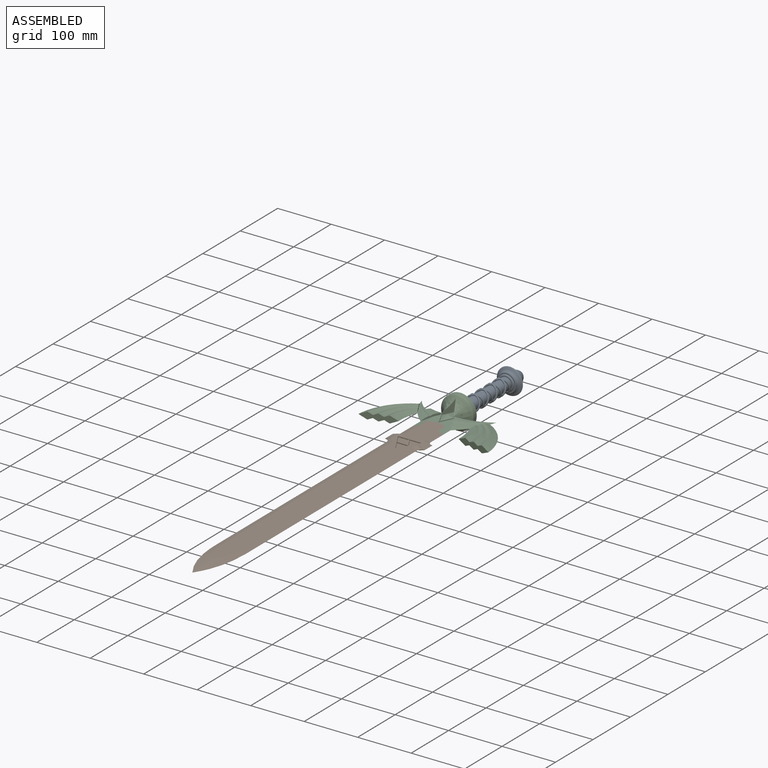
[diagram: assembled view]
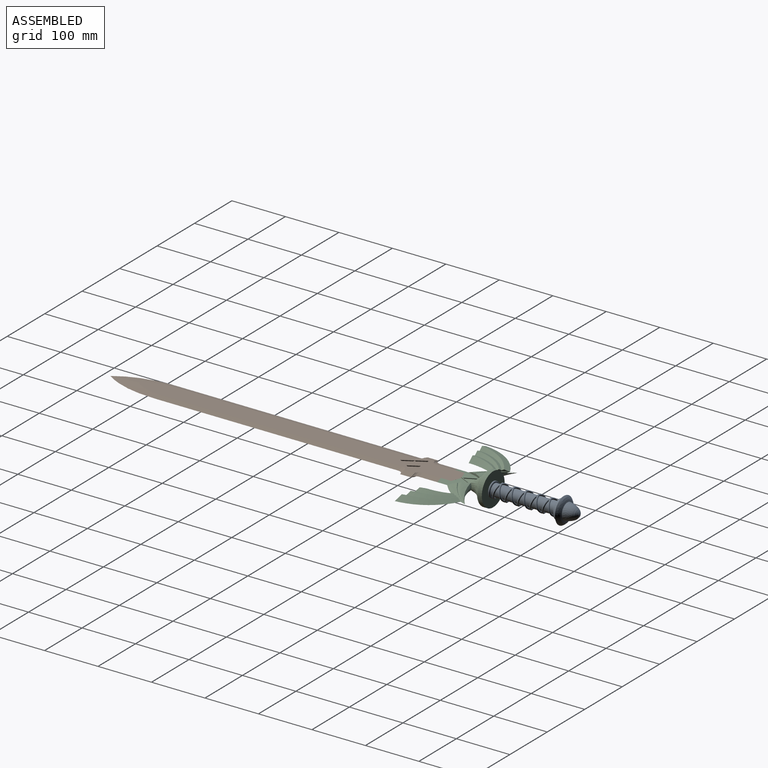
[diagram: assembled view, second angle]
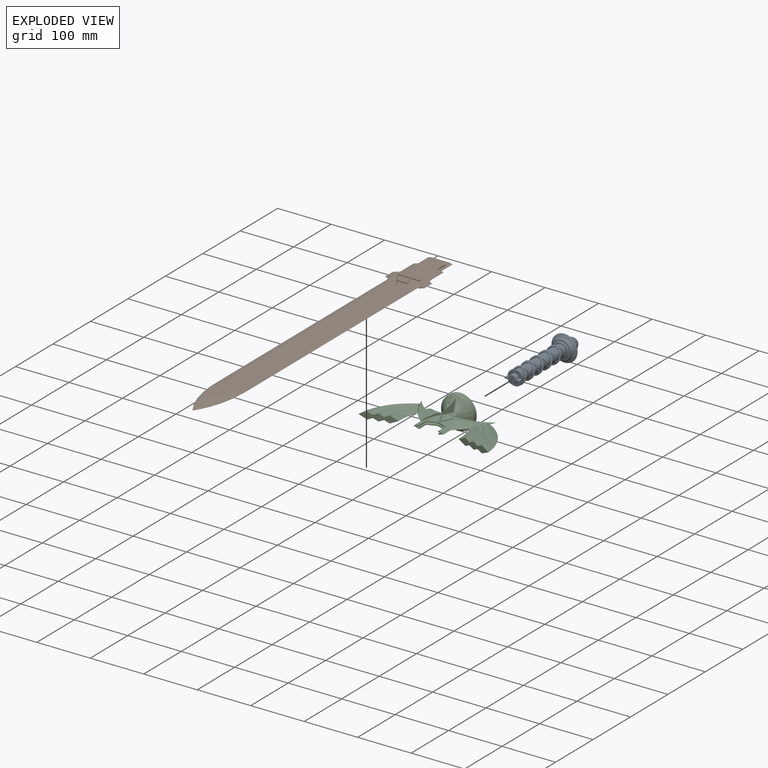
[diagram: exploded view]
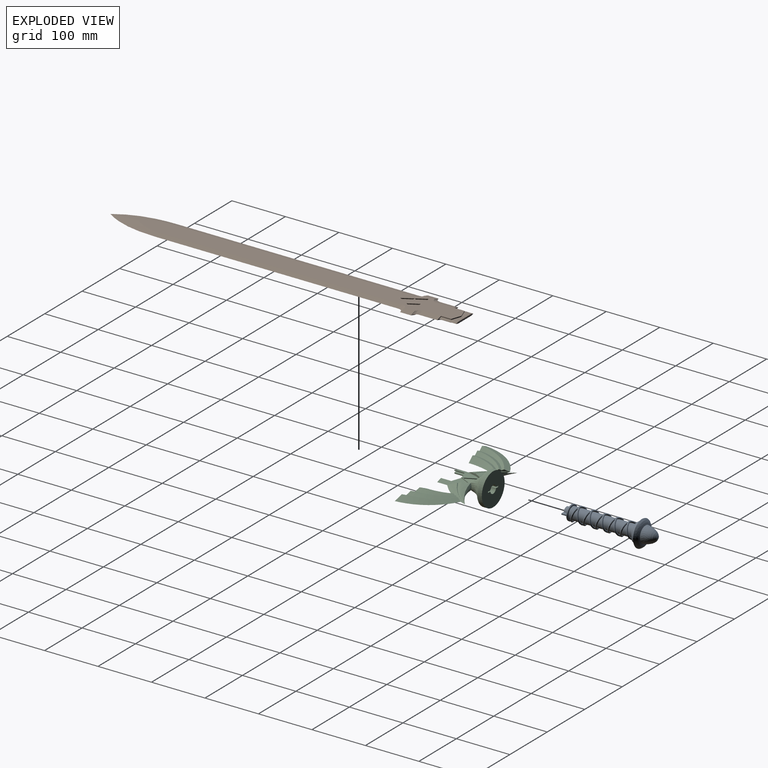
[diagram: exploded view, second angle]
ASSEMBLY  parts=3 mates=2
PART A: 54 faces, bbox 50.4x170.9x49.1 mm
  f0: cylinder r=11.11mm len=22.93mm, axis (0,-1,0), area 794.4mm2, adj f10,f11,f52,f53
  f1: cylinder r=11.11mm len=22.93mm, axis (0,-1,0), area 794.4mm2, adj f11,f12,f51,f52
  f2: cylinder r=11.11mm len=22.93mm, axis (0,-1,0), area 794.4mm2, adj f12,f13,f50,f51
  f3: cylinder r=11.11mm len=22.93mm, axis (0,-1,0), area 794.4mm2, adj f13,f14,f49,f50
  f4: cylinder r=11.11mm len=22.93mm, axis (0,-1,0), area 794.4mm2, adj f14,f15,f48,f49
  f5: cylinder r=11.11mm len=22.93mm, axis (0,-1,0), area 794.4mm2, adj f15,f16,f47,f48
  f6: cylinder r=11.11mm len=22.93mm, axis (0,-1,0), area 794.4mm2, adj f16,f17,f46,f47
  f7: cylinder r=11.11mm len=22.93mm, axis (0,-1,0), area 794.4mm2, adj f17,f18,f45,f46
  f8: cylinder r=11.11mm len=22.93mm, axis (0,-1,0), area 794.4mm2, adj f18,f43,f44,f45
  f9: cylinder r=11.11mm len=22.23mm, axis (0,-1,0), area 503.6mm2, adj f20,f43,f44
  f10: bspline ~28.58x19.07mm, area 381.5mm2, adj f0,f19,f33,f35,f52,f53
  f11: bspline ~28.58x20.23mm, area 364.1mm2, adj f0,f1,f51,f52,f53
  f12: bspline ~28.58x20.23mm, area 364.6mm2, adj f1,f2,f50,f51,f52
  f13: bspline ~28.58x20.23mm, area 364.1mm2, adj f2,f3,f49,f50,f51
  f14: bspline ~28.58x20.23mm, area 364.6mm2, adj f3,f4,f48,f49,f50
  f15: bspline ~28.58x20.23mm, area 364.1mm2, adj f4,f5,f47,f48,f49
  f16: bspline ~28.58x20.23mm, area 364.6mm2, adj f5,f6,f46,f47,f48
  f17: bspline ~28.58x20.23mm, area 364.1mm2, adj f6,f7,f45,f46,f47
  f18: bspline ~28.58x20.23mm, area 364.6mm2, adj f7,f8,f44,f45,f46
  f19: cylinder r=11.11mm len=22.23mm, axis (0,-1,0), area 485.9mm2, adj f10,f33,f53
  f20: plane 25.51x25.5mm, normal (0,-1,0), area 118.6mm2, adj f9,f21,f43,f44
  f21: torus R=12.7mm, axis (0,1,0), area 169.3mm2, adj f20,f38,f43,f44
  f22: plane 8.89x6.19mm, normal (0,0,-1), area 55.1mm2, adj f23,f29,f31,f34
  f23: cylinder r=7.62mm len=15.09mm, axis (0,-1,0), area 193.7mm2, adj f22,f24,f31,f34
  f24: plane 8.89x6.19mm, normal (0,0,-1), area 55.1mm2, adj f23,f25,f30,f31,f34
  f25: plane 8.89x2.14mm, normal (-1,0,0), area 19mm2, adj f24,f26,f30,f31
  f26: plane 8.89x6.19mm, normal (0,0,1), area 55.1mm2, adj f25,f27,f30,f31,f34
  f27: cylinder r=7.62mm len=15.09mm, axis (0,-1,0), area 193.7mm2, adj f26,f28,f31,f34
  f28: plane 8.89x6.19mm, normal (0,0,1), area 55.1mm2, adj f27,f29,f31,f34
  f29: plane 8.89x2.14mm, normal (1,0,0), area 19mm2, adj f22,f28,f31,f34
  f30: plane 2.14x0.08mm, normal (0,1,0), area 0.1mm2, adj f24,f25,f26,f32
  f31: plane 27.48x15.24mm, normal (0,-1,0), area 208.7mm2, adj f22,f23,f24,f25,f26,f27,f28,f29
  f32: cylinder r=13.97mm len=27.94mm, axis (0,-1,0), area 111.5mm2, adj f30,f34,f35
  f33: plane 25.78x25.73mm, normal (0,1,0), area 117.4mm2, adj f10,f19,f35,f53
  f34: plane 27.94x27.92mm, normal (0,-1,0), area 404.5mm2, adj f22,f23,f24,f26,f27,f28,f29,f32
  f35: torus R=12.7mm, axis (0,1,0), area 168.5mm2, adj f10,f32,f33,f53
  f36: cylinder r=17.78mm len=35.56mm, axis (0,-1,0), area 141.9mm2, adj f39,f40
  f37: plane 33.02x33.02mm, normal (0,-1,0), area 126.7mm2, adj f38,f39
  f38: torus R=15.24mm, axis (0,1,0), area 180.9mm2, adj f21,f37
  f39: torus R=16.51mm, axis (0,1,0), area 217.1mm2, adj f36,f37
  f40: bspline ~50.04x48.77mm, area 1233.5mm2, adj f36,f41
  f41: bspline ~50.04x48.77mm, area 1453.6mm2, adj f40,f42
  f42: revolved ~30.48x30.48mm, area 1841mm2, adj f41
  f43: bspline ~28.58x19.07mm, area 381.9mm2, adj f8,f9,f20,f21,f44,f45
  f44: bspline ~28.58x19.07mm, area 381.9mm2, adj f8,f9,f18,f20,f21,f43
  f45: bspline ~28.58x20.23mm, area 364.1mm2, adj f7,f8,f17,f18,f43
  f46: bspline ~28.58x20.23mm, area 364.6mm2, adj f6,f7,f16,f17,f18
  f47: bspline ~28.58x20.23mm, area 364.1mm2, adj f5,f6,f15,f16,f17
  f48: bspline ~28.58x20.23mm, area 364.6mm2, adj f4,f5,f14,f15,f16
  f49: bspline ~28.58x20.23mm, area 364.1mm2, adj f3,f4,f13,f14,f15
  f50: bspline ~28.58x20.23mm, area 364.6mm2, adj f2,f3,f12,f13,f14
  f51: bspline ~28.58x20.23mm, area 364.1mm2, adj f1,f2,f11,f12,f13
  f52: bspline ~28.58x20.23mm, area 364.6mm2, adj f0,f1,f10,f11,f12
  f53: bspline ~28.58x19.07mm, area 381.6mm2, adj f0,f10,f11,f19,f33,f35
PART B: 51 faces, bbox 74.3x6.5x662.8 mm
  f0: plane 45.62x3.03mm, normal (0,0,-1), area 123.3mm2, adj f39,f41,f42,f44,f47,f50
  f1: plane 31.75x1.66mm, normal (-1,0,0), area 31.7mm2, adj f4,f5,f44,f49,f50
  f2: plane 601.94x53.71mm, normal (0,1,0), area 20561.7mm2, adj f3,f23,f24,f25,f26,f27,f28,f29
  f3: plane 31.75x1.66mm, normal (1,0,0), area 31.7mm2, adj f2,f11,f41,f45,f47
  f4: plane 10.29x6.35mm, normal (0,0,-1), area 25.2mm2, adj f1,f12,f28,f39,f40,f44
  f5: plane 601.94x53.71mm, normal (0,-1,0), area 20561.7mm2, adj f1,f6,f7,f8,f9,f10,f12,f13
  f6: bspline ~103.71x28.17mm, area 1438.2mm2, adj f5,f7,f14,f23
  f7: bspline ~103.71x28.17mm, area 1438.2mm2, adj f5,f6,f8,f24
  f8: bspline ~464.24x19.15mm, area 4994mm2, adj f5,f7,f9,f25
  f9: plane 20.32x10.29mm, normal (0.29,-0.96,0), area 218.8mm2, adj f5,f8,f10,f26
  f10: bspline ~42.92x19.15mm, area 471.1mm2, adj f5,f9,f11,f27
  f11: plane 10.29x6.35mm, normal (0,0,-1), area 25.2mm2, adj f3,f10,f27,f41,f42,f43
  f12: bspline ~42.92x19.15mm, area 471.1mm2, adj f4,f5,f13,f28
  f13: plane 20.32x10.29mm, normal (-0.29,-0.96,0), area 218.8mm2, adj f5,f12,f14,f29
  f14: bspline ~464.24x19.15mm, area 4994mm2, adj f5,f6,f13,f30
  f15: plane 37.79x21.82mm, normal (-0.87,0,-0.5), area 69.3mm2, adj f5,f16,f20,f21
  f16: plane 43.64x1.59mm, normal (0,0,1), area 69.3mm2, adj f5,f15,f20,f21
  f17: plane 18.89x10.91mm, normal (-0.87,0,-0.5), area 34.6mm2, adj f18,f19,f21,f22
  f18: plane 18.89x10.91mm, normal (0.87,0,-0.5), area 34.6mm2, adj f17,f19,f21,f22
  f19: plane 21.81x1.59mm, normal (0,0,1), area 34.6mm2, adj f17,f18,f21,f22
  f20: plane 37.79x21.82mm, normal (0.87,0,-0.5), area 69.3mm2, adj f5,f15,f16,f21
  f21: plane 43.64x37.79mm, normal (0,-1,0), area 618.6mm2, adj f15,f16,f17,f18,f19,f20
  f22: plane 21.81x18.89mm, normal (0,-1,0), area 206mm2, adj f17,f18,f19
  f23: bspline ~103.71x28.17mm, area 1438.2mm2, adj f2,f6,f24,f30
  f24: bspline ~103.71x28.17mm, area 1438.2mm2, adj f2,f7,f23,f25
  f25: bspline ~464.24x19.15mm, area 4994mm2, adj f2,f8,f24,f26
  f26: plane 20.32x10.29mm, normal (0.29,0.96,0), area 218.8mm2, adj f2,f9,f25,f27
  f27: bspline ~42.92x19.15mm, area 471.1mm2, adj f2,f10,f11,f26
  f28: bspline ~42.92x19.15mm, area 471.1mm2, adj f2,f4,f12,f29
  f29: plane 20.32x10.29mm, normal (-0.29,0.96,0), area 218.8mm2, adj f2,f13,f28,f30
  f30: bspline ~464.24x19.15mm, area 4994mm2, adj f2,f14,f23,f29
  f31: plane 37.79x21.82mm, normal (-0.87,0,-0.5), area 69.3mm2, adj f2,f32,f36,f37
  f32: plane 37.79x21.82mm, normal (0.87,0,-0.5), area 69.3mm2, adj f2,f31,f36,f37
  f33: plane 18.89x10.91mm, normal (-0.87,0,-0.5), area 34.6mm2, adj f34,f35,f37,f38
  f34: plane 21.81x1.59mm, normal (0,0,1), area 34.6mm2, adj f33,f35,f37,f38
  f35: plane 18.89x10.91mm, normal (0.87,0,-0.5), area 34.6mm2, adj f33,f34,f37,f38
  f36: plane 43.64x1.59mm, normal (0,0,1), area 69.3mm2, adj f2,f31,f32,f37
  f37: plane 43.64x37.79mm, normal (0,1,0), area 618.6mm2, adj f31,f32,f33,f34,f35,f36
  f38: plane 21.81x18.89mm, normal (0,1,0), area 206mm2, adj f33,f34,f35
  f39: plane 31.75x4.9mm, normal (-0.29,0.96,0), area 163mm2, adj f0,f4,f40,f44
  f40: plane 31.75x1.66mm, normal (-1,0,0), area 31.7mm2, adj f2,f4,f39,f46,f47
  f41: plane 31.75x4.9mm, normal (0.29,0.96,0), area 163mm2, adj f0,f3,f11,f42
  f42: plane 31.75x4.9mm, normal (0.29,-0.96,0), area 163mm2, adj f0,f11,f41,f43
  f43: plane 31.75x1.66mm, normal (1,0,0), area 31.7mm2, adj f5,f11,f42,f48,f50
  f44: plane 31.75x4.9mm, normal (-0.29,-0.96,0), area 163mm2, adj f0,f1,f4,f39
  f45: plane 17.91x6.35mm, normal (0.33,0,-0.94), area 31.6mm2, adj f2,f3,f46,f47
  f46: plane 17.91x6.35mm, normal (-0.33,0,-0.94), area 31.6mm2, adj f2,f40,f45,f47
  f47: plane 35.81x12.7mm, normal (0,1,0), area 341.1mm2, adj f0,f3,f40,f45,f46
  f48: plane 17.91x6.35mm, normal (0.33,0,-0.94), area 31.6mm2, adj f5,f43,f49,f50
  f49: plane 17.91x6.35mm, normal (-0.33,0,-0.94), area 31.6mm2, adj f1,f5,f48,f50
  f50: plane 35.81x12.7mm, normal (0,-1,0), area 341.1mm2, adj f0,f1,f43,f48,f49
PART C: 126 faces, bbox 243.6x61.2x99.3 mm
  f0: plane 32.87x18.09mm, normal (0,-1,0), area 323.8mm2, adj f4,f12,f29,f75,f102,f108
  f1: plane 0.73x0.4mm, normal (0,0,1), area 0.2mm2, adj f4,f100,f123
  f2: bspline ~62.29x48.09mm, area 570.1mm2, adj f3,f75,f76,f77,f86
  f3: bspline ~62.28x48.09mm, area 569.8mm2, adj f2,f75,f76,f78,f86
  f4: bspline ~58.82x58.8mm, area 3114.7mm2, adj f0,f1,f7,f8,f9,f10,f32,f33
  f5: bspline ~62.28x48.09mm, area 569.8mm2, adj f6,f55,f57,f58,f61
  f6: bspline ~62.29x48.09mm, area 570.1mm2, adj f5,f56,f57,f58,f61
  f7: plane 0.73x0.4mm, normal (0,0,1), area 0.2mm2, adj f4,f42,f125
  f8: plane 32.87x18.09mm, normal (0,1,0), area 323.8mm2, adj f4,f24,f31,f37,f48,f58
  f9: plane 32.88x18.1mm, normal (0,-1,0), area 323.8mm2, adj f4,f23,f28,f58,f105,f107
  f10: plane 32.88x18.1mm, normal (0,1,0), area 323.8mm2, adj f4,f13,f30,f36,f47,f75
  f11: plane 44.45x3.03mm, normal (0,0,1), area 123.1mm2, adj f14,f15,f16,f17,f26,f27,f59,f74
  f12: plane 40.39x10.29mm, normal (-0.29,-0.96,0), area 324mm2, adj f0,f13,f18,f25,f75
  f13: plane 40.39x10.29mm, normal (-0.29,0.96,0), area 324mm2, adj f10,f12,f20,f25,f75
  f14: plane 31.75x4.9mm, normal (0.29,0.96,0), area 162.6mm2, adj f11,f15,f17,f18,f25,f74
  f15: plane 31.75x4.9mm, normal (0.29,-0.96,0), area 162.6mm2, adj f11,f14,f16,f20,f25,f74
  f16: plane 35.81x12.7mm, normal (0,-1,0), area 341.1mm2, adj f11,f15,f26,f30,f31
  f17: plane 35.81x12.7mm, normal (0,1,0), area 341.1mm2, adj f11,f14,f27,f28,f29
  f18: plane 19.05x1.66mm, normal (1,0,0), area 31.6mm2, adj f12,f14,f25,f29
  f19: plane 19.05x1.66mm, normal (-1,0,0), area 31.6mm2, adj f22,f23,f27,f28
  f20: plane 19.05x1.66mm, normal (1,0,0), area 31.6mm2, adj f13,f15,f25,f30
  f21: plane 19.05x1.66mm, normal (-1,0,0), area 31.6mm2, adj f22,f24,f26,f31
  f22: plane 10.29x6.35mm, normal (0,0,1), area 25.2mm2, adj f19,f21,f23,f24,f26,f27
  f23: plane 40.39x10.29mm, normal (0.29,-0.96,0), area 324mm2, adj f9,f19,f22,f24,f58
  f24: plane 40.39x10.29mm, normal (0.29,0.96,0), area 324mm2, adj f8,f21,f22,f23,f58
  f25: plane 10.29x6.35mm, normal (0,0,1), area 25.2mm2, adj f12,f13,f14,f15,f18,f20
  f26: plane 31.75x4.9mm, normal (-0.29,-0.96,0), area 162.6mm2, adj f11,f16,f21,f22,f27,f59
  f27: plane 31.75x4.9mm, normal (-0.29,0.96,0), area 162.6mm2, adj f11,f17,f19,f22,f26,f59
  f28: plane 17.91x6.35mm, normal (-0.33,0,0.94), area 31.6mm2, adj f9,f17,f19,f29
  f29: plane 17.91x6.35mm, normal (0.33,0,0.94), area 31.6mm2, adj f0,f17,f18,f28
  f30: plane 17.91x6.35mm, normal (0.33,0,0.94), area 31.6mm2, adj f10,f16,f20,f31
  f31: plane 17.91x6.35mm, normal (-0.33,0,0.94), area 31.6mm2, adj f8,f16,f21,f30
  f32: plane 0.73x0.4mm, normal (0,0,1), area 0.2mm2, adj f4,f101,f122
  f33: plane 0.73x0.4mm, normal (0,0,1), area 0.2mm2, adj f4,f41,f124
  f34: cylinder r=30.48mm len=60.96mm, axis (0,0,1), area 1451.9mm2, adj f35,f99
  f35: bspline ~60.98x60.97mm, area 454.9mm2, adj f4,f34
  f36: plane 23.76x11.88mm, normal (-0.89,0,0.45), area 33.3mm2, adj f10,f37,f38,f47
  f37: plane 23.91x12.03mm, normal (0.89,0,0.45), area 33.3mm2, adj f8,f36,f38,f48
  f38: plane 24.18x23.84mm, normal (0,1,0), area 82.8mm2, adj f36,f37,f39,f40,f47,f48,f124,f125
  f39: plane 21.94x11.1mm, normal (0.89,0,-0.45), area 31.2mm2, adj f38,f40,f42,f44,f125
  f40: plane 21.94x11.1mm, normal (-0.89,0,-0.45), area 31.2mm2, adj f38,f39,f41,f46,f124
  f41: plane 22.34x21.68mm, normal (-0.89,0,0.45), area 289.4mm2, adj f4,f33,f40,f42,f45
  f42: plane 22.34x21.68mm, normal (0.89,0,0.45), area 289.4mm2, adj f4,f7,f39,f41,f43
  f43: plane 21.68x10.84mm, normal (-0.34,0.92,-0.17), area 127.3mm2, adj f42,f44,f45
  f44: plane 21.68x10.84mm, normal (-0.34,0.92,0.17), area 127.3mm2, adj f39,f43,f46
  f45: plane 21.68x10.84mm, normal (0.34,0.92,-0.17), area 127.3mm2, adj f41,f43,f46
  f46: plane 21.68x10.84mm, normal (0.34,0.92,0.17), area 127.3mm2, adj f40,f44,f45
  f47: bspline ~3.77x2.48mm, area 3.4mm2, adj f4,f10,f36,f38,f125
  f48: bspline ~3.18x2.35mm, area 3.4mm2, adj f4,f8,f37,f38,f124
  f49: bspline ~51.19x47.12mm, area 193.4mm2, adj f50,f56,f57,f58
  f50: bspline ~57.35x42.48mm, area 457.5mm2, adj f49,f51,f58
  f51: bspline ~58.21x29.89mm, area 208.8mm2, adj f4,f50,f52,f58
  f52: bspline ~58.22x29.89mm, area 208.8mm2, adj f4,f51,f53,f58
  f53: bspline ~57.99x42.48mm, area 457.8mm2, adj f52,f54,f57,f58
  f54: bspline ~51.08x47.12mm, area 193.5mm2, adj f53,f55,f57,f58
  f55: bspline ~48.76x48.47mm, area 66.3mm2, adj f5,f54,f57,f58
  f56: bspline ~48.75x48.47mm, area 66.3mm2, adj f6,f49,f57,f58
  f57: plane 0.11x0.11mm, normal (0,0,-1), area 0mm2, adj f5,f6,f49,f53,f54,f55,f56
  f58: plane 33.29x16.66mm, normal (-0.89,0,0.45), area 215.6mm2, adj f4,f5,f6,f8,f9,f23,f24,f49
  f59: plane 1.17x0.59mm, normal (-0.89,0,0.45), area 0.2mm2, adj f11,f26,f27
  f60: plane 65.58x14.01mm, normal (-0.21,0,0.98), area 553.9mm2, adj f62,f63,f64,f65,f66,f67,f68,f69
  f61: plane 29.56x16.69mm, normal (-0.87,0,-0.49), area 142.7mm2, adj f5,f6,f62,f63,f64,f65,f66,f67
  f62: bspline ~51.75x21.57mm, area 642.2mm2, adj f60,f61,f63,f73
  f63: bspline ~57.13x25.9mm, area 435.8mm2, adj f60,f61,f62,f64
  f64: bspline ~62.53x33.08mm, area 496.3mm2, adj f60,f61,f63,f65
  f65: bspline ~67.81x40.3mm, area 551.2mm2, adj f60,f61,f64,f66
  f66: bspline ~73.06x47.4mm, area 598.3mm2, adj f60,f61,f65,f67
  f67: bspline ~84.19x60.17mm, area 1289.1mm2, adj f60,f61,f66,f68
  f68: bspline ~84.19x60.17mm, area 1289.1mm2, adj f60,f61,f67,f69
  f69: bspline ~73.07x47.4mm, area 605.6mm2, adj f60,f61,f68,f70
  f70: bspline ~67.78x40.12mm, area 543.8mm2, adj f60,f61,f69,f71
  f71: bspline ~62.53x33.09mm, area 492.3mm2, adj f60,f61,f70,f72
  f72: bspline ~57.15x26.03mm, area 439.8mm2, adj f60,f61,f71,f73
  f73: bspline ~51.75x21.57mm, area 642.2mm2, adj f60,f61,f62,f72
  f74: plane 1.17x0.59mm, normal (0.89,0,0.45), area 0.2mm2, adj f11,f14,f15
  f75: plane 33.29x16.66mm, normal (0.89,0,0.45), area 215.6mm2, adj f0,f2,f3,f4,f10,f12,f13,f77
  f76: plane 0.09x0.09mm, normal (0,0,-1), area 0mm2, adj f2,f3,f77,f78,f79,f80,f84
  f77: bspline ~48.75x48.47mm, area 66.3mm2, adj f2,f75,f76,f84
  f78: bspline ~48.76x48.47mm, area 66.3mm2, adj f3,f75,f76,f79
  f79: bspline ~51.08x47.12mm, area 193.5mm2, adj f75,f76,f78,f80
  f80: bspline ~57.99x42.48mm, area 457.8mm2, adj f75,f76,f79,f81
  f81: bspline ~58.22x29.89mm, area 208.8mm2, adj f4,f75,f80,f82
  f82: bspline ~58.21x29.89mm, area 208.8mm2, adj f4,f75,f81,f83
  f83: bspline ~57.35x42.48mm, area 457.5mm2, adj f75,f82,f84
  f84: bspline ~51.19x47.12mm, area 193.4mm2, adj f75,f76,f77,f83
  f85: plane 65.58x14.01mm, normal (0.21,0,0.98), area 553.9mm2, adj f87,f88,f89,f90,f91,f92,f93,f94
  f86: plane 29.56x16.69mm, normal (0.87,0,-0.49), area 142.7mm2, adj f2,f3,f87,f88,f89,f90,f91,f92
  f87: bspline ~51.75x21.57mm, area 642.2mm2, adj f85,f86,f88,f98
  f88: bspline ~57.13x25.9mm, area 435.8mm2, adj f85,f86,f87,f89
  f89: bspline ~62.53x33.08mm, area 496.3mm2, adj f85,f86,f88,f90
  f90: bspline ~67.81x40.3mm, area 551.2mm2, adj f85,f86,f89,f91
  f91: bspline ~73.06x47.4mm, area 598.3mm2, adj f85,f86,f90,f92
  f92: bspline ~84.19x60.17mm, area 1289.1mm2, adj f85,f86,f91,f93
  f93: bspline ~84.19x60.17mm, area 1289.1mm2, adj f85,f86,f92,f94
  f94: bspline ~73.07x47.4mm, area 605.6mm2, adj f85,f86,f93,f95
  f95: bspline ~67.78x40.12mm, area 543.8mm2, adj f85,f86,f94,f96
  f96: bspline ~62.53x33.09mm, area 492.3mm2, adj f85,f86,f95,f97
  f97: bspline ~57.15x26.03mm, area 439.8mm2, adj f85,f86,f96,f98
  f98: bspline ~51.75x21.57mm, area 642.2mm2, adj f85,f86,f87,f97
  f99: plane 60.96x60.96mm, normal (0,0,-1), area 2709.9mm2, adj f34,f113,f114,f115,f116,f117,f118,f119
  f100: plane 22.34x21.68mm, normal (0.89,0,0.45), area 289.5mm2, adj f1,f4,f101,f103,f110
  f101: plane 22.34x21.68mm, normal (-0.89,0,0.45), area 289.4mm2, adj f4,f32,f100,f104,f112
  f102: plane 23.91x12.03mm, normal (-0.89,0,0.45), area 33.3mm2, adj f0,f105,f106,f108
  f103: plane 21.94x11.1mm, normal (0.89,0,-0.45), area 31.2mm2, adj f100,f104,f106,f109,f123
  f104: plane 21.94x11.1mm, normal (-0.89,0,-0.45), area 31.2mm2, adj f101,f103,f106,f111,f122
  f105: plane 23.76x11.88mm, normal (0.89,0,0.45), area 33.3mm2, adj f9,f102,f106,f107
  f106: plane 24.18x23.84mm, normal (0,-1,0), area 82.8mm2, adj f102,f103,f104,f105,f107,f108,f122,f123
  f107: bspline ~3.77x2.48mm, area 3.4mm2, adj f4,f9,f105,f106,f122
  f108: bspline ~3.72x2.47mm, area 3.4mm2, adj f0,f4,f102,f106,f123
  f109: plane 21.68x10.84mm, normal (-0.34,-0.92,0.17), area 127.3mm2, adj f103,f110,f111
  f110: plane 21.68x10.84mm, normal (-0.34,-0.92,-0.17), area 127.3mm2, adj f100,f109,f112
  f111: plane 21.68x10.84mm, normal (0.34,-0.92,0.17), area 127.3mm2, adj f104,f109,f112
  f112: plane 21.68x10.84mm, normal (0.34,-0.92,-0.17), area 127.3mm2, adj f101,f110,f111
  f113: plane 8.89x6.19mm, normal (0,1,0), area 55.1mm2, adj f99,f114,f120,f121
  f114: plane 8.89x2.14mm, normal (-1,0,0), area 19mm2, adj f99,f113,f115,f121
  f115: plane 8.89x6.19mm, normal (0,-1,0), area 55.1mm2, adj f99,f114,f116,f121
  f116: cylinder r=7.62mm len=15.09mm, axis (0,0,-1), area 193.7mm2, adj f99,f115,f117,f121
  f117: plane 8.89x6.19mm, normal (0,-1,0), area 55.1mm2, adj f99,f116,f118,f121
  f118: plane 8.89x2.14mm, normal (1,0,0), area 19mm2, adj f99,f117,f119,f121
  f119: plane 8.89x6.19mm, normal (0,1,0), area 55.1mm2, adj f99,f118,f120,f121
  f120: cylinder r=7.62mm len=15.09mm, axis (0,0,-1), area 193.7mm2, adj f99,f113,f119,f121
  f121: plane 27.48x15.24mm, normal (0,0,-1), area 208.7mm2, adj f113,f114,f115,f116,f117,f118,f119,f120
  f122: cylinder r=1.27mm len=1.68mm, axis (-1,0,0), area 2.1mm2, adj f32,f104,f106,f107
  f123: cylinder r=1.27mm len=1.68mm, axis (1,0,0), area 2.1mm2, adj f1,f103,f106,f108
  f124: cylinder r=1.27mm len=1.68mm, axis (-1,0,0), area 2.1mm2, adj f33,f38,f40,f48
  f125: cylinder r=1.27mm len=1.69mm, axis (-1,0,0), area 2.1mm2, adj f7,f38,f39,f47
PLACE A rot(axis=(0,1,0),180deg) t=(-95.64,273.18,83.1)mm
PLACE B rot(axis=(0,-0.71,0.71),180deg) t=(-95.4,196.98,86.63)mm
PLACE C rot(axis=(0,-0.71,0.71),180deg) t=(-95.4,171.58,86.63)mm
MATE fastened C.f16 <-> B.f47  axis (0,0,1) through (-95.4,223.79,81.94)mm
MATE fastened A.f23 <-> C.f116  axis (0,-1,0) through (-95.4,273.18,83.45)mm
